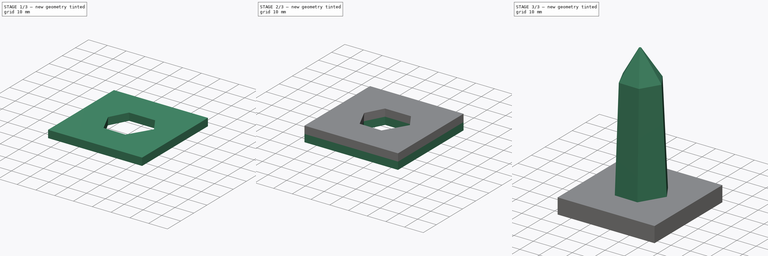
[diagram: build sequence overview — one tinted view per stage of 3, left to right]
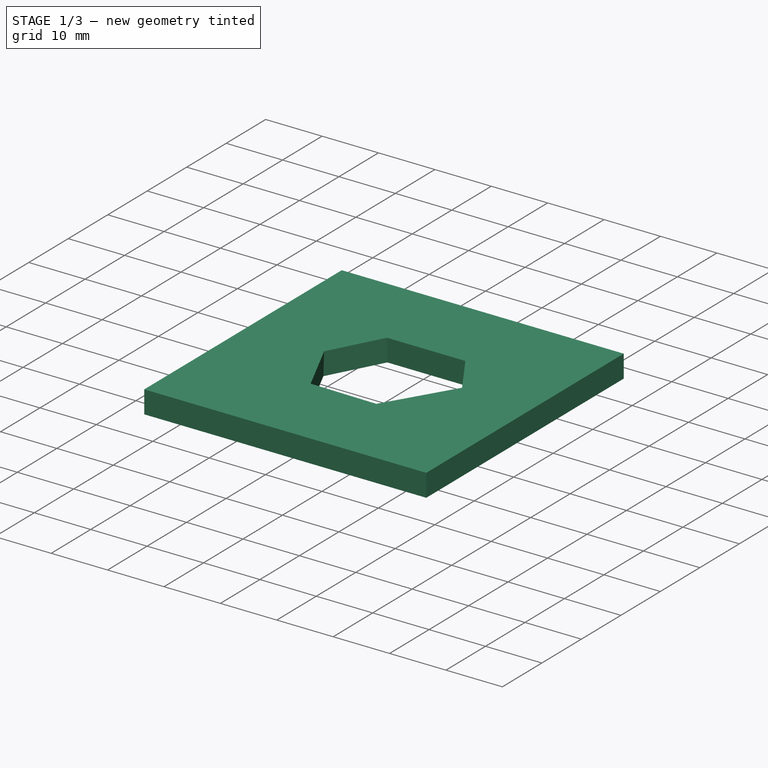
[diagram: stage 1 of 3 — iso view after this stage's code; geometry added in this stage tinted green]
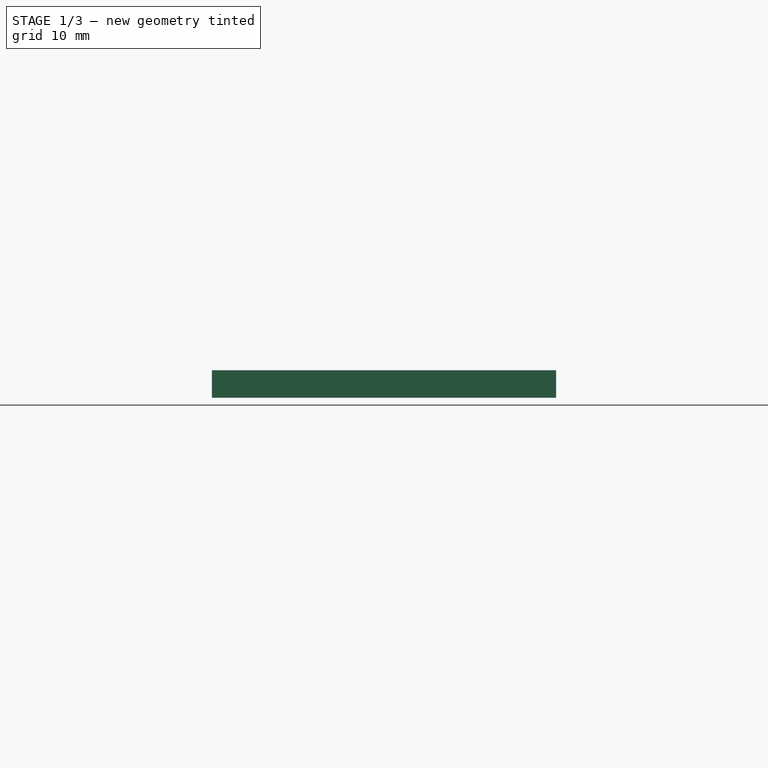
[diagram: stage 1 of 3 — front view after this stage's code; geometry added in this stage tinted green]
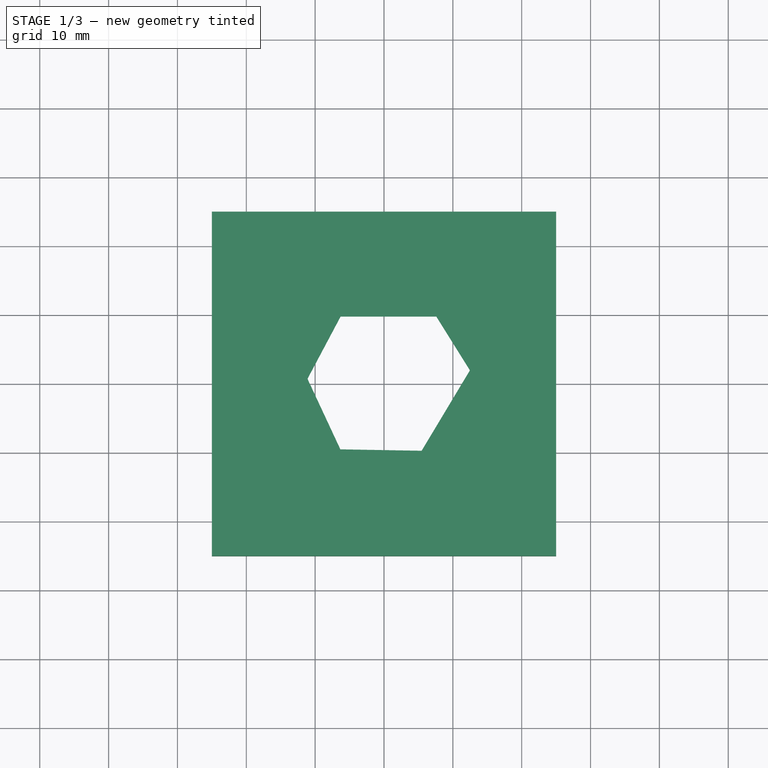
[diagram: stage 1 of 3 — top view after this stage's code; geometry added in this stage tinted green]
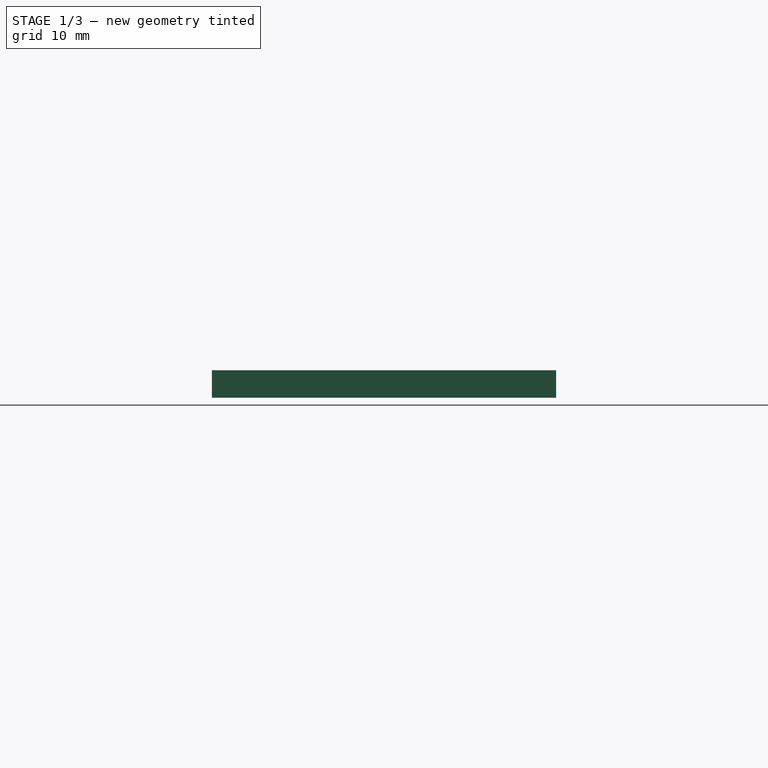
[diagram: stage 1 of 3 — right view after this stage's code; geometry added in this stage tinted green]
FCSTD DOCUMENT  (FreeCAD 0.18R16085 (Git))
Label: crystal
License: All rights reserved
LicenseURL: http://en.wikipedia.org/wiki/All_rights_reserved
objects: Sketcher::SketchObject×11, PartDesign::Body×5, TechDraw::DrawProjGroupItem×4, TechDraw::DrawViewSection×3, PartDesign::Pocket×2, Part::Feature×2, PartDesign::Pad×2, PartDesign::ShapeBinder×2, PartDesign::Boolean×2, TechDraw::DrawSVGTemplate×1, PartDesign::AdditiveLoft×1, PartDesign::FeatureBase×1, TechDraw::DrawProjGroup×1, Image::ImagePlane×1, TechDraw::DrawViewPart×1, TechDraw::DrawPage×1
note: 33 computed .brp shape members not serialized (recipe doc carries the construction recipe); baked Part::Feature solids carry a one-line shape summary decoded from their .brp

FEATURE [TechDraw::DrawSVGTemplate] Template
  EditableTexts = Designed_by_Name=Stefan Krüger; Drawing_number=1; FC-Date=15.03.2019; FC-SC=1:1; FC-SH=1; FC-Title=Crystsal; Subtitle=model and mounting; Weight=-; extra_information_title=URL; extra_information_value=https://github.com/<owner>/magic_crystal
  Height = 210
  Orientation = 1
  Width = 297
FEATURE [Sketcher::SketchObject] Sketch007  label="crystal_outline_at_00.0mm__Sketch"
  sketch-geometry (9):
    g0: LineSegment StartX=-6.33086 StartY=9.97483 StartZ=0 EndX=7.86914 EndY=9.97483 EndZ=0
    g1: LineSegment StartX=7.86914 StartY=9.97483 StartZ=0 EndX=12.8113 EndY=2.06573 EndZ=0
    g2: LineSegment StartX=12.8113 StartY=2.06573 StartZ=0 EndX=5.54635 EndY=-10.0252 EndZ=0
    g3: LineSegment StartX=5.54635 StartY=-10.0252 StartZ=0 EndX=-6.45182 EndY=-9.81574 EndZ=0
    g4: LineSegment StartX=-6.45182 StartY=-9.81574 StartZ=0 EndX=-11.3119 EndY=0.606803 EndZ=0
    g5: LineSegment StartX=-11.3119 StartY=0.606803 StartZ=0 EndX=-6.33086 EndY=9.97483 EndZ=0
    g6: LineSegment [constr] StartX=0.769137 StartY=9.97483 StartZ=0 EndX=0 EndY=0 EndZ=0
    g7: LineSegment [constr] StartX=0 StartY=0 StartZ=0 EndX=-8.88188 EndY=-4.60447 EndZ=0
    g8: LineSegment [constr] StartX=0 StartY=0 StartZ=0 EndX=9.17882 EndY=-3.97972 EndZ=0
  constraints (30):
    c: Coincident(g0,g1)
    c: Coincident(g1,g2)
    c: Coincident(g2,g3)
    c: Coincident(g3,g4)
    c: Coincident(g4,g5)
    c: Coincident(g5,g0)
    c: Distance(g2) = 14.1056
    c: Distance(g3) = 12
    c: Distance(g4) = 11.5
    c: Distance(g5) = 10.61
    c: Distance(g0) = 14.2
    c: Distance(g1) = 9.32624
    c: Horizontal(g0)
    c: DistanceY(g2,g0) = 20
    c: Symmetric(g2,g2,g8)
    c: Symmetric(g4,g4,g7)
    c: Symmetric(g0,g0,g6)
    c: Equal(g6,g7)
    c: Equal(g7,g8)
    c: Coincident(g6,g-1)
    c: Coincident(g7,g8)
    c: Coincident(g7,g-1)
    c: Angle(g5,g0) = 2.05949
    c: Angle(g0,g1) = 2.1293
    c: Angle(g1,g2) = 2.04204
    c: Angle(g4,g5) = 2.21657
    c: Angle(g3,g4) = 2.02458
    c: Angle(g2,g3) = 2.0944
    c: Distance(g4,g1) = 24.1673
    c: Distance(g4,g2) = 19.9309
FEATURE [Sketcher::SketchObject] Sketch009  label="crystal_outline_at_60.0mm__Sketch"
  Placement = pos=(0,0,60) rot=(0,0,1;0rad)
  sketch-geometry (9):
    g0: LineSegment StartX=-6.14803 StartY=8.30968 StartZ=0 EndX=5.85197 EndY=8.30968 EndZ=0
    g1: LineSegment StartX=5.85197 StartY=8.30968 StartZ=0 EndX=10.3164 EndY=1.16505 EndZ=0
    g2: LineSegment StartX=10.3164 StartY=1.16505 StartZ=0 EndX=4.90853 EndY=-7.83521 EndZ=0
    g3: LineSegment StartX=4.90853 StartY=-7.83521 StartZ=0 EndX=-5.58987 EndY=-7.65196 EndZ=0
    g4: LineSegment StartX=-5.58987 StartY=-7.65196 StartZ=0 EndX=-9.81605 EndY=1.41112 EndZ=0
    g5: LineSegment StartX=-9.81605 StartY=1.41112 StartZ=0 EndX=-6.14803 EndY=8.30968 EndZ=0
    g6: LineSegment [constr] StartX=-0.148026 StartY=8.30968 StartZ=0 EndX=0 EndY=0 EndZ=0
    g7: LineSegment [constr] StartX=0 StartY=0 StartZ=0 EndX=-7.70296 EndY=-3.12042 EndZ=0
    g8: LineSegment [constr] StartX=0 StartY=0 StartZ=0 EndX=7.61248 EndY=-3.33508 EndZ=0
  constraints (27):
    c: Coincident(g0,g1)
    c: Coincident(g1,g2)
    c: Coincident(g2,g3)
    c: Coincident(g3,g4)
    c: Coincident(g4,g5)
    c: Coincident(g5,g0)
    c: Distance(g2) = 10.5
    c: Distance(g3) = 10.5
    c: Distance(g4) = 10
    c: Distance(g5) = 7.8131
    c: Distance(g0) = 12
    c: Distance(g1) = 8.42479
    c: Horizontal(g0)
    c: Symmetric(g2,g2,g8)
    c: Symmetric(g4,g4,g7)
    c: Symmetric(g0,g0,g6)
    c: Equal(g6,g7)
    c: Equal(g7,g8)
    c: Coincident(g6,g-1)
    c: Coincident(g7,g8)
    c: Coincident(g7,g-1)
    c: Angle(g5,g0) = 2.05949
    c: Angle(g0,g1) = 2.1293
    c: Angle(g1,g2) = 2.04204
    c: Angle(g4,g5) = 2.21657
    c: Angle(g3,g4) = 2.02458
    c: Angle(g2,g3) = 2.0944
FEATURE [Sketcher::SketchObject] Sketch010  label="crystal_outline_at_75.0mm__Sketch"
  Placement = pos=(0,0,75) rot=(0,0,1;0rad)
  sketch-geometry (9):
    g0: LineSegment StartX=-0.24088 StartY=0.440595 StartZ=0 EndX=0.25912 EndY=0.440595 EndZ=0
    g1: LineSegment StartX=0.25912 StartY=0.440595 StartZ=0 EndX=0.52408 EndY=0.0165712 EndZ=0
    g2: LineSegment StartX=0.52408 StartY=0.0165712 StartZ=0 EndX=0.232142 EndY=-0.469295 EndZ=0
    g3: LineSegment StartX=0.232142 StartY=-0.469295 StartZ=0 EndX=-0.267782 EndY=-0.460569 EndZ=0
    g4: LineSegment StartX=-0.267782 StartY=-0.460569 StartZ=0 EndX=-0.479091 EndY=-0.00741507 EndZ=0
    g5: LineSegment StartX=-0.479091 StartY=-0.00741507 StartZ=0 EndX=-0.24088 EndY=0.440595 EndZ=0
    g6: LineSegment [constr] StartX=0.0091199 StartY=0.440595 StartZ=0 EndX=0 EndY=0 EndZ=0
    g7: LineSegment [constr] StartX=0 StartY=0 StartZ=0 EndX=-0.373437 EndY=-0.233992 EndZ=0
    g8: LineSegment [constr] StartX=0 StartY=0 StartZ=0 EndX=0.378111 EndY=-0.226362 EndZ=0
  constraints (27):
    c: Coincident(g0,g1)
    c: Coincident(g1,g2)
    c: Coincident(g2,g3)
    c: Coincident(g3,g4)
    c: Coincident(g4,g5)
    c: Coincident(g5,g0)
    c: Distance(g2) = 0.566828
    c: Distance(g3) = 0.5
    c: Distance(g4) = 0.5
    c: Distance(g5) = 0.507403
    c: Distance(g0) = 0.5
    c: Distance(g1) = 0.5
    c: Horizontal(g0)
    c: Symmetric(g2,g2,g8)
    c: Symmetric(g4,g4,g7)
    c: Symmetric(g0,g0,g6)
    c: Equal(g6,g7)
    c: Equal(g7,g8)
    c: Coincident(g6,g-1)
    c: Coincident(g7,g8)
    c: Coincident(g7,g-1)
    c: Angle(g5,g0) = 2.05949
    c: Angle(g0,g1) = 2.1293
    c: Angle(g1,g2) = 2.04204
    c: Angle(g4,g5) = 2.21657
    c: Angle(g3,g4) = 2.02458
    c: Angle(g2,g3) = 2.0944
FEATURE [PartDesign::AdditiveLoft] AdditiveLoft002
  Closed = true
  Profile = -> Sketch007
  Ruled = true
  Sections = -> [Sketch009,Sketch010]
FEATURE [PartDesign::Body] Body002002  label="mounting_plate_bottom_4mm_Body"
  Group = -> [Sketch,Pad,Boolean]
  Origin = -> Origin003
  Tip = -> Boolean
FEATURE [Sketcher::SketchObject] Sketch016
  AttachmentOffset = pos=(0,0,4) rot=(0,0,1;0rad)
  MapMode = 5
  Placement = pos=(0,0,4) rot=(0,0,1;0rad)
  Support = -> [XY_Plane004]
  sketch-geometry (4):
    g0: LineSegment StartX=-25 StartY=25 StartZ=0 EndX=25 EndY=25 EndZ=0
    g1: LineSegment StartX=25 StartY=25 StartZ=0 EndX=25 EndY=-25 EndZ=0
    g2: LineSegment StartX=25 StartY=-25 StartZ=0 EndX=-25 EndY=-25 EndZ=0
    g3: LineSegment StartX=-25 StartY=-25 StartZ=0 EndX=-25 EndY=25 EndZ=0
  constraints (11):
    c: Coincident(g0,g1)
    c: Coincident(g1,g2)
    c: Coincident(g2,g3)
    c: Coincident(g3,g0)
    c: Horizontal(g0)
    c: Horizontal(g2)
    c: Vertical(g1)
    c: Vertical(g3)
    c: Symmetric(g2,g0,g-1)
    c: Equal(g0,g1)
    c: DistanceX(g0,g0) = 50
FEATURE [PartDesign::Pad] Pad001
  Length = 4
  Length2 = 100
  Profile = -> Sketch016
  Type = 0
FEATURE [PartDesign::ShapeBinder] ShapeBinder001  label="crystal_ShapeBinder001"
  Support = -> [Body001]
  TraceSupport = false
FEATURE [PartDesign::Boolean] Boolean001
  BaseFeature = -> Pad001
  Group = -> [ShapeBinder001]
  Type = 1
FEATURE [PartDesign::Body] Body002003  label="mounting_plate_top_4mm_Body"
  Group = -> [Sketch016,Pad001,Boolean001]
  Origin = -> Origin004
  Tip = -> Boolean001
FEATURE [Part::Feature] Body001001  label="crystal_Body_SimpleCopy"
  shape: bbox 24.12 x 20 x 75 mm, 14 faces (baked)
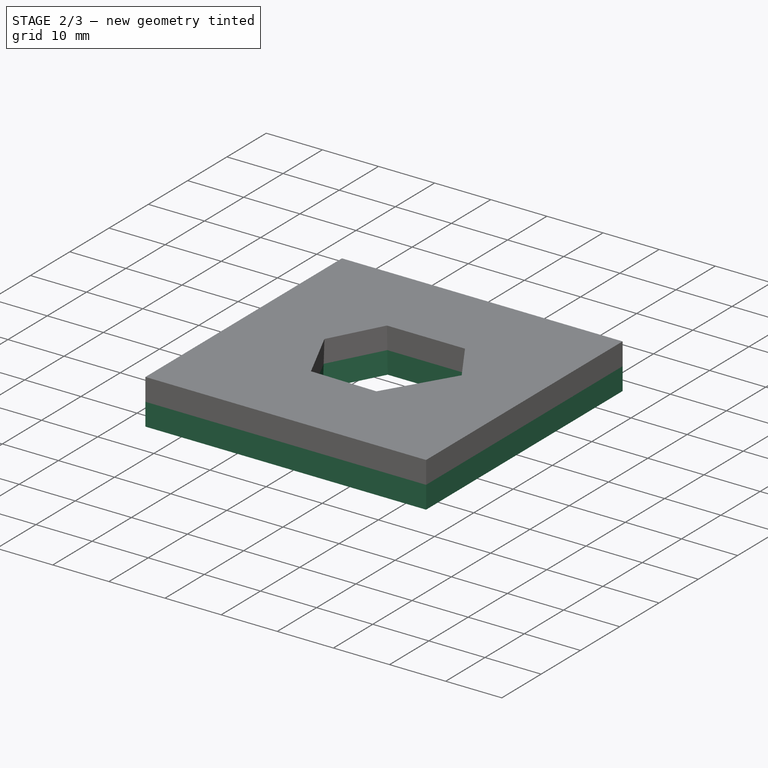
[diagram: stage 2 of 3 — iso view after this stage's code; geometry added in this stage tinted green]
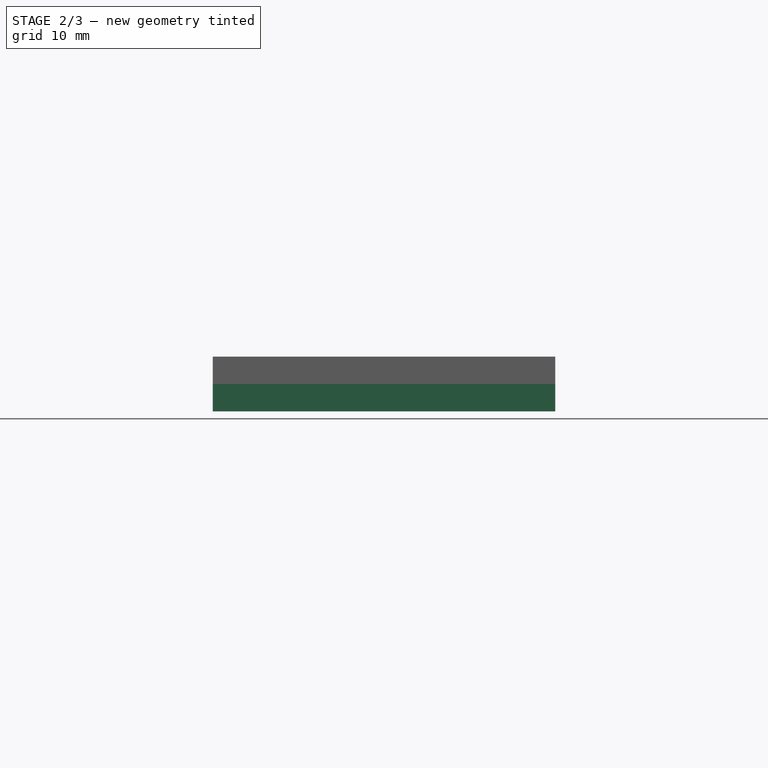
[diagram: stage 2 of 3 — front view after this stage's code; geometry added in this stage tinted green]
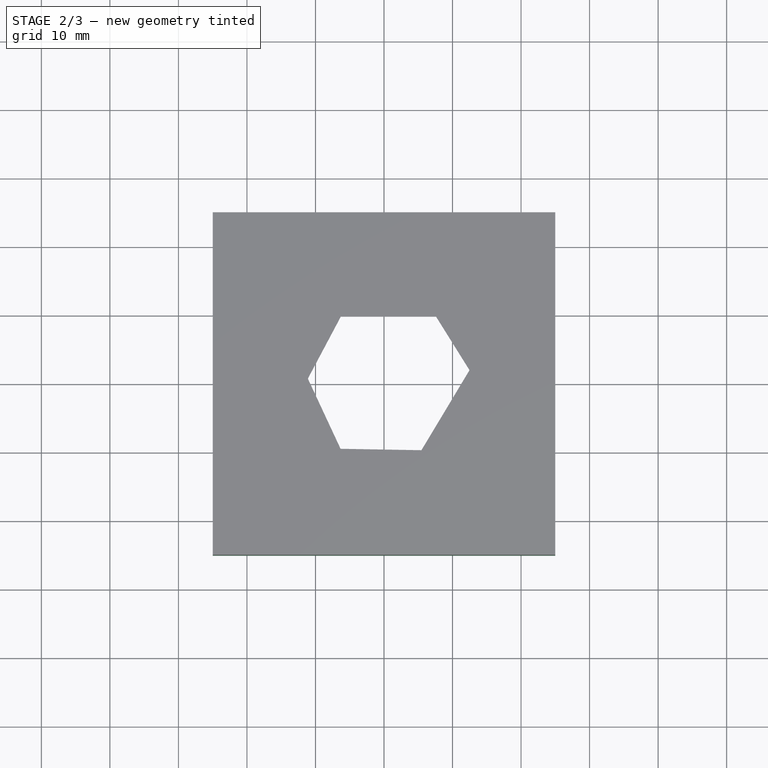
[diagram: stage 2 of 3 — top view after this stage's code; geometry added in this stage tinted green]
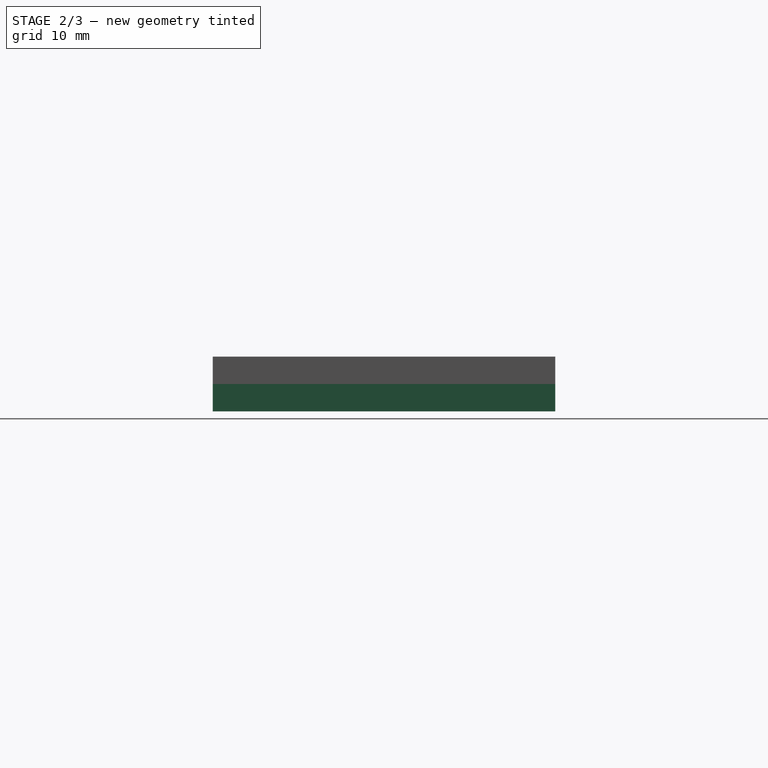
[diagram: stage 2 of 3 — right view after this stage's code; geometry added in this stage tinted green]
FEATURE [PartDesign::Body] Body002  label="crystal_detailed_Body"
  BaseFeature = -> Body001
  Group = -> [Clone,Sketch011,Pocket,Sketch012,Pocket001]
  Origin = -> Origin002
  Tip = -> Pocket001
FEATURE [TechDraw::DrawProjGroupItem] ProjItem  label="Front"
  CoarseView = false
  Direction = (0,0,1)
  Focus = 100
  HardHidden = false
  IsoCount = 0
  IsoHidden = false
  IsoVisible = false
  LockPosition = true
  Perspective = false
  Rotation = 0
  RotationVector = (1,0,0)
  ScaleType = 2
  SeamHidden = false
  SeamVisible = false
  SmoothHidden = false
  SmoothVisible = false
  Source = -> [Body002]
  Type = 0
  X = 0
  Y = 0
FEATURE [TechDraw::DrawProjGroupItem] ProjItem001  label="Bottom"
  CoarseView = false
  Direction = (0,-1,0)
  Focus = 100
  HardHidden = false
  IsoCount = 0
  IsoHidden = false
  IsoVisible = false
  LockPosition = false
  Perspective = false
  Rotation = 0
  RotationVector = (1,0,0)
  ScaleType = 2
  SeamHidden = false
  SeamVisible = false
  SmoothHidden = false
  SmoothVisible = false
  Source = -> [Body002]
  Type = 5
  X = 0
  Y = 65
FEATURE [TechDraw::DrawProjGroupItem] ProjItem004  label="FrontBottomLeft"
  CoarseView = false
  Direction = (-1,-1,1)
  Focus = 100
  HardHidden = false
  IsoCount = 0
  IsoHidden = false
  IsoVisible = false
  LockPosition = false
  Perspective = false
  Rotation = 0
  RotationVector = (1,0,1)
  ScaleType = 2
  SeamHidden = false
  SeamVisible = false
  SmoothHidden = false
  SmoothVisible = false
  Source = -> [Body002]
  Type = 8
  X = 65
  Y = 65
FEATURE [TechDraw::DrawProjGroupItem] ProjItem005  label="Left"
  CoarseView = false
  Direction = (-1,0,1e-16)
  Focus = 100
  HardHidden = false
  IsoCount = 0
  IsoHidden = false
  IsoVisible = false
  LockPosition = false
  Perspective = false
  Rotation = 0
  RotationVector = (1e-16,0,1)
  ScaleType = 2
  SeamHidden = false
  SeamVisible = false
  SmoothHidden = false
  SmoothVisible = false
  Source = -> [Body002]
  Type = 1
  X = 65
  Y = 0
FEATURE [TechDraw::DrawProjGroup] ProjGroup
  Anchor = -> ProjItem
  AutoDistribute = true
  LockPosition = false
  ProjectionType = 0
  Rotation = 0
  ScaleType = 0
  Source = -> [Body002]
  Views = -> [ProjItem,ProjItem001,ProjItem004,ProjItem005]
  X = 180.061
  Y = 90.129
  spacingX = -10
  spacingY = -10
FEATURE [Image::ImagePlane] ImagePlane  label="crystal_outline_at_11.0mm__ImagePlane"
  Placement = pos=(-2,-8,11) rot=(0,0,1;1.5708rad)
  XSize = 52.7
  YSize = 52.7
FEATURE [Sketcher::SketchObject] Sketch001  label="crystal_outline_at_11.0mm__Sketch"
  Placement = pos=(0,0,11) rot=(0,0,1;0rad)
  sketch-geometry (11):
    g0: LineSegment StartX=-6.50475 StartY=9.63331 StartZ=0 EndX=7.49525 EndY=9.63331 EndZ=0
    g1: LineSegment StartX=7.49525 StartY=9.63331 StartZ=0 EndX=12.2728 EndY=1.42202 EndZ=0
    g2: LineSegment StartX=12.2728 StartY=1.42202 StartZ=0 EndX=5.02382 EndY=-9.96669 EndZ=0
    g3: LineSegment StartX=5.02382 StartY=-9.96669 StartZ=0 EndX=-6.47618 EndY=-9.96669 EndZ=0
    g4: LineSegment StartX=-6.47618 StartY=-9.96669 StartZ=0 EndX=-10.2559 EndY=0.363534 EndZ=0
    g5: LineSegment StartX=-10.2559 StartY=0.363534 StartZ=0 EndX=-6.50475 EndY=9.63331 EndZ=0
    g6: LineSegment [constr] StartX=-6.50475 StartY=9.63331 StartZ=0 EndX=10.5783 EndY=-1.24012 EndZ=0
    g7: LineSegment [constr] StartX=-7.93752 StartY=-5.97276 StartZ=0 EndX=12.2728 EndY=1.42202 EndZ=0
    g8: LineSegment [constr] StartX=0.49525 StartY=9.63331 StartZ=0 EndX=0 EndY=0 EndZ=0
    g9: LineSegment [constr] StartX=0 StartY=0 StartZ=0 EndX=8.6483 EndY=-4.27234 EndZ=0
    g10: LineSegment [constr] StartX=0 StartY=0 StartZ=0 EndX=-8.36605 EndY=-4.80158 EndZ=0
  constraints (31):
    c: Coincident(g0,g1)
    c: Coincident(g1,g2)
    c: Coincident(g2,g3)
    c: Coincident(g3,g4)
    c: Coincident(g4,g5)
    c: Coincident(g5,g0)
    c: Distance(g2) = 13.5
    c: Distance(g3) = 11.5
    c: Distance(g4) = 11
    c: Distance(g5) = 10
    c: Distance(g0) = 14
    c: Distance(g1) = 9.5
    c: Horizontal(g3)
    c: Horizontal(g0)
    c: DistanceY(g2,g0) = 19.6
    c: PointOnObject(g6,g2)
    c: Perpendicular(g2,g6)
    c: Coincident(g6,g0)
    c: Distance(g6) = 20.25
    c: Coincident(g7,g1)
    c: PointOnObject(g7,g4)
    c: Perpendicular(g4,g7)
    c: Distance(g7) = 21.5207
    c: Coincident(g9,g8)
    c: Coincident(g10,g8)
    c: Symmetric(g4,g4,g10)
    c: Symmetric(g0,g0,g8)
    c: Symmetric(g2,g2,g9)
    c: Equal(g8,g10)
    c: Equal(g10,g9)
    c: Coincident(g8,g-1)
FEATURE [Part::Feature] Body002001  label="crystal_detailed_Body_SimpleCopy"
  shape: bbox 24.12 x 20 x 75 mm, 16 faces (baked)
FEATURE [Sketcher::SketchObject] Sketch013  label="crystal_outline_at_4mm__Sketch"
  Placement = pos=(0,0,4) rot=(0,0,1;0rad)
  sketch-geometry (9):
    g0: LineSegment StartX=-6.33086 StartY=9.97483 StartZ=0 EndX=7.86914 EndY=9.97483 EndZ=0
    g1: LineSegment StartX=7.86914 StartY=9.97483 StartZ=0 EndX=12.8113 EndY=2.06573 EndZ=0
    g2: LineSegment StartX=12.8113 StartY=2.06573 StartZ=0 EndX=5.54635 EndY=-10.0252 EndZ=0
    g3: LineSegment StartX=5.54635 StartY=-10.0252 StartZ=0 EndX=-6.45182 EndY=-9.81574 EndZ=0
    g4: LineSegment StartX=-6.45182 StartY=-9.81574 StartZ=0 EndX=-11.3119 EndY=0.606803 EndZ=0
    g5: LineSegment StartX=-11.3119 StartY=0.606803 StartZ=0 EndX=-6.33086 EndY=9.97483 EndZ=0
    g6: LineSegment [constr] StartX=0.769137 StartY=9.97483 StartZ=0 EndX=0 EndY=0 EndZ=0
    g7: LineSegment [constr] StartX=0 StartY=0 StartZ=0 EndX=-8.88188 EndY=-4.60447 EndZ=0
    g8: LineSegment [constr] StartX=0 StartY=0 StartZ=0 EndX=9.17882 EndY=-3.97972 EndZ=0
  constraints (30):
    c: Coincident(g0,g1)
    c: Coincident(g1,g2)
    c: Coincident(g2,g3)
    c: Coincident(g3,g4)
    c: Coincident(g4,g5)
    c: Coincident(g5,g0)
    c: Distance(g2) = 14.1056
    c: Distance(g3) = 12
    c: Distance(g4) = 11.5
    c: Distance(g5) = 10.61
    c: Distance(g0) = 14.2
    c: Distance(g1) = 9.32624
    c: Horizontal(g0)
    c: DistanceY(g2,g0) = 20
    c: Symmetric(g2,g2,g8)
    c: Symmetric(g4,g4,g7)
    c: Symmetric(g0,g0,g6)
    c: Equal(g6,g7)
    c: Equal(g7,g8)
    c: Coincident(g6,g-1)
    c: Coincident(g7,g8)
    c: Coincident(g7,g-1)
    c: Angle(g5,g0) = 2.05949
    c: Angle(g0,g1) = 2.1293
    c: Angle(g1,g2) = 2.04204
    c: Angle(g4,g5) = 2.21657
    c: Angle(g3,g4) = 2.02458
    c: Angle(g2,g3) = 2.0944
    c: Distance(g4,g1) = 24.1673
    c: Distance(g4,g2) = 19.9309
FEATURE [Sketcher::SketchObject] Sketch014  label="crystal_outline_at_8mm__Sketch"
  Placement = pos=(0,0,8) rot=(0,0,1;0rad)
  sketch-geometry (9):
    g0: LineSegment StartX=-6.33086 StartY=9.97483 StartZ=0 EndX=7.86914 EndY=9.97483 EndZ=0
    g1: LineSegment StartX=7.86914 StartY=9.97483 StartZ=0 EndX=12.8113 EndY=2.06573 EndZ=0
    g2: LineSegment StartX=12.8113 StartY=2.06573 StartZ=0 EndX=5.54635 EndY=-10.0252 EndZ=0
    g3: LineSegment StartX=5.54635 StartY=-10.0252 StartZ=0 EndX=-6.45182 EndY=-9.81574 EndZ=0
    g4: LineSegment StartX=-6.45182 StartY=-9.81574 StartZ=0 EndX=-11.3119 EndY=0.606803 EndZ=0
    g5: LineSegment StartX=-11.3119 StartY=0.606803 StartZ=0 EndX=-6.33086 EndY=9.97483 EndZ=0
    g6: LineSegment [constr] StartX=0.769137 StartY=9.97483 StartZ=0 EndX=0 EndY=0 EndZ=0
    g7: LineSegment [constr] StartX=0 StartY=0 StartZ=0 EndX=-8.88188 EndY=-4.60447 EndZ=0
    g8: LineSegment [constr] StartX=0 StartY=0 StartZ=0 EndX=9.17882 EndY=-3.97972 EndZ=0
  constraints (30):
    c: Coincident(g0,g1)
    c: Coincident(g1,g2)
    c: Coincident(g2,g3)
    c: Coincident(g3,g4)
    c: Coincident(g4,g5)
    c: Coincident(g5,g0)
    c: Distance(g2) = 14.1056
    c: Distance(g3) = 12
    c: Distance(g4) = 11.5
    c: Distance(g5) = 10.61
    c: Distance(g0) = 14.2
    c: Distance(g1) = 9.32624
    c: Horizontal(g0)
    c: DistanceY(g2,g0) = 20
    c: Symmetric(g2,g2,g8)
    c: Symmetric(g4,g4,g7)
    c: Symmetric(g0,g0,g6)
    c: Equal(g6,g7)
    c: Equal(g7,g8)
    c: Coincident(g6,g-1)
    c: Coincident(g7,g8)
    c: Coincident(g7,g-1)
    c: Angle(g5,g0) = 2.05949
    c: Angle(g0,g1) = 2.1293
    c: Angle(g1,g2) = 2.04204
    c: Angle(g4,g5) = 2.21657
    c: Angle(g3,g4) = 2.02458
    c: Angle(g2,g3) = 2.0944
    c: Distance(g4,g1) = 24.1673
    c: Distance(g4,g2) = 19.9309
FEATURE [Sketcher::SketchObject] Sketch015  label="crystal_outline_at_11mm__Sketch"
  Placement = pos=(0,0,11) rot=(0,0,1;0rad)
  sketch-geometry (9):
    g0: LineSegment StartX=-6.33086 StartY=9.97483 StartZ=0 EndX=7.86914 EndY=9.97483 EndZ=0
    g1: LineSegment StartX=7.86914 StartY=9.97483 StartZ=0 EndX=12.8113 EndY=2.06573 EndZ=0
    g2: LineSegment StartX=12.8113 StartY=2.06573 StartZ=0 EndX=5.54635 EndY=-10.0252 EndZ=0
    g3: LineSegment StartX=5.54635 StartY=-10.0252 StartZ=0 EndX=-6.45182 EndY=-9.81574 EndZ=0
    g4: LineSegment StartX=-6.45182 StartY=-9.81574 StartZ=0 EndX=-11.3119 EndY=0.606803 EndZ=0
    g5: LineSegment StartX=-11.3119 StartY=0.606803 StartZ=0 EndX=-6.33086 EndY=9.97483 EndZ=0
    g6: LineSegment [constr] StartX=0.769137 StartY=9.97483 StartZ=0 EndX=0 EndY=0 EndZ=0
    g7: LineSegment [constr] StartX=0 StartY=0 StartZ=0 EndX=-8.88188 EndY=-4.60447 EndZ=0
    g8: LineSegment [constr] StartX=0 StartY=0 StartZ=0 EndX=9.17882 EndY=-3.97972 EndZ=0
  constraints (30):
    c: Coincident(g0,g1)
    c: Coincident(g1,g2)
    c: Coincident(g2,g3)
    c: Coincident(g3,g4)
    c: Coincident(g4,g5)
    c: Coincident(g5,g0)
    c: Distance(g2) = 14.1056
    c: Distance(g3) = 12
    c: Distance(g4) = 11.5
    c: Distance(g5) = 10.61
    c: Distance(g0) = 14.2
    c: Distance(g1) = 9.32624
    c: Horizontal(g0)
    c: DistanceY(g2,g0) = 20
    c: Symmetric(g2,g2,g8)
    c: Symmetric(g4,g4,g7)
    c: Symmetric(g0,g0,g6)
    c: Equal(g6,g7)
    c: Equal(g7,g8)
    c: Coincident(g6,g-1)
    c: Coincident(g7,g8)
    c: Coincident(g7,g-1)
    c: Angle(g5,g0) = 2.05949
    c: Angle(g0,g1) = 2.1293
    c: Angle(g1,g2) = 2.04204
    c: Angle(g4,g5) = 2.21657
    c: Angle(g3,g4) = 2.02458
    c: Angle(g2,g3) = 2.0944
    c: Distance(g4,g1) = 24.1673
    c: Distance(g4,g2) = 19.9309
FEATURE [PartDesign::Body] Body  label="mounting_cut_helper_Body"
  Group = -> [Sketch013,Sketch014,Sketch015]
  Origin = -> Origin
FEATURE [TechDraw::DrawViewPart] View001  label="Crystal_Side_Big_View"
  CoarseView = false
  Direction = (-0.017,-0.999,0.036)
  Focus = 100
  HardHidden = false
  IsoCount = 0
  IsoHidden = false
  IsoVisible = false
  LockPosition = true
  Perspective = false
  Rotation = 0
  Scale = 2
  ScaleType = 0
  SeamHidden = false
  SeamVisible = false
  SmoothHidden = false
  SmoothVisible = false
  Source = -> [Body002]
  X = 50
  Y = 120
FEATURE [TechDraw::DrawViewSection] Section  label="Section A - A"
  BaseView = -> View001
  CoarseView = false
  Direction = (0,0,1)
  Focus = 100
  FuseBeforeCut = true
  HardHidden = false
  HatchScale = 1
  IsoCount = 0
  IsoHidden = false
  IsoVisible = false
  LockPosition = false
  NameGeomPattern = Diamond
  Perspective = false
  Rotation = 0
  ScaleType = 2
  SeamHidden = false
  SeamVisible = false
  SectionDirection = 3
  SectionNormal = (0,0,1)
  SectionOrigin = (0,0,60)
  SectionSymbol = A
  SmoothHidden = false
  SmoothVisible = false
  Source = -> [Body002]
  X = 114.423
  Y = 176.586
FEATURE [TechDraw::DrawViewSection] Section001  label="Section B - B"
  BaseView = -> View001
  CoarseView = false
  Direction = (0,0,1)
  Focus = 100
  FuseBeforeCut = true
  HardHidden = false
  HatchScale = 1
  IsoCount = 0
  IsoHidden = false
  IsoVisible = false
  LockPosition = false
  NameGeomPattern = Diamond
  Perspective = false
  Rotation = 0
  ScaleType = 2
  SeamHidden = false
  SeamVisible = false
  SectionDirection = 3
  SectionNormal = (0,0,1)
  SectionOrigin = (0,0,11)
  SectionSymbol = B
  SmoothHidden = false
  SmoothVisible = false
  Source = -> [Body002]
  X = 118.916
  Y = 88.283
FEATURE [TechDraw::DrawViewSection] Section002  label="Section C - C"
  BaseView = -> View001
  CoarseView = false
  Direction = (0,0,1)
  Focus = 100
  FuseBeforeCut = true
  HardHidden = false
  HatchScale = 1
  IsoCount = 0
  IsoHidden = false
  IsoVisible = false
  LockPosition = false
  NameGeomPattern = Diamond
  Perspective = false
  Rotation = 0
  ScaleType = 2
  SeamHidden = false
  SeamVisible = false
  SectionDirection = 3
  SectionNormal = (0,0,1)
  SectionOrigin = (0,0,4)
  SectionSymbol = C
  SmoothHidden = false
  SmoothVisible = false
  Source = -> [Body002]
  X = 118.685
  Y = 54.7378
FEATURE [TechDraw::DrawPage] Page
  KeepUpdated = true
  ProjectionType = 0
  Template = -> Template
  Views = -> [ProjGroup,Section,Section001,Section002,View001]
FEATURE [Sketcher::SketchObject] Sketch
  MapMode = 5
  Support = -> [XY_Plane003]
  sketch-geometry (4):
    g0: LineSegment StartX=-25 StartY=25 StartZ=0 EndX=25 EndY=25 EndZ=0
    g1: LineSegment StartX=25 StartY=25 StartZ=0 EndX=25 EndY=-25 EndZ=0
    g2: LineSegment StartX=25 StartY=-25 StartZ=0 EndX=-25 EndY=-25 EndZ=0
    g3: LineSegment StartX=-25 StartY=-25 StartZ=0 EndX=-25 EndY=25 EndZ=0
  constraints (11):
    c: Coincident(g0,g1)
    c: Coincident(g1,g2)
    c: Coincident(g2,g3)
    c: Coincident(g3,g0)
    c: Horizontal(g0)
    c: Horizontal(g2)
    c: Vertical(g1)
    c: Vertical(g3)
    c: Symmetric(g2,g0,g-1)
    c: Equal(g0,g1)
    c: DistanceX(g0,g0) = 50
FEATURE [PartDesign::Pad] Pad
  Length = 4
  Length2 = 100
  Profile = -> Sketch
  Type = 0
FEATURE [PartDesign::ShapeBinder] ShapeBinder  label="crystal_ShapeBinder"
  Support = -> [Body001]
  TraceSupport = false
FEATURE [PartDesign::Boolean] Boolean
  BaseFeature = -> Pad
  Group = -> [ShapeBinder]
  Type = 1
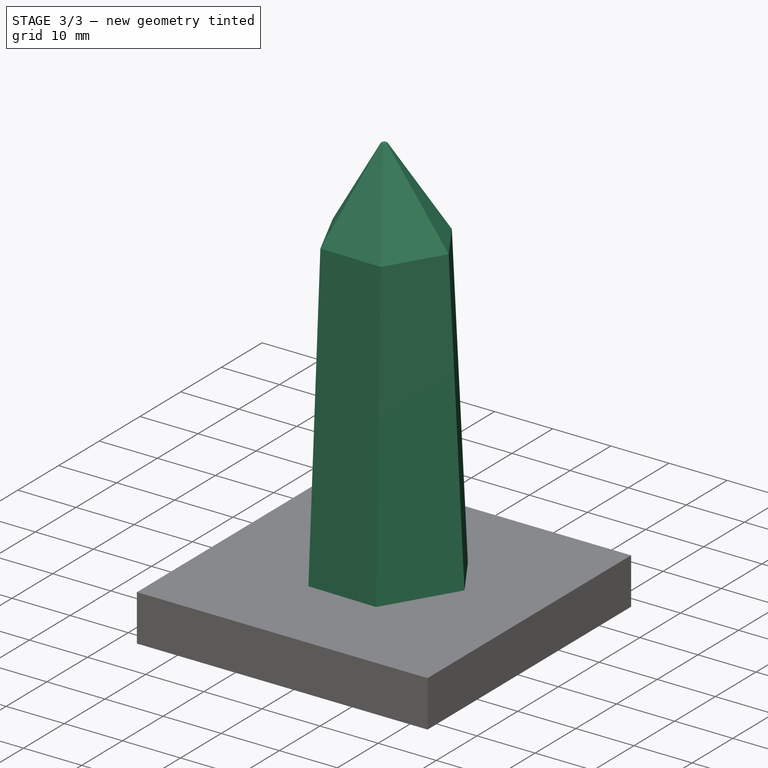
[diagram: stage 3 of 3 — iso view after this stage's code; geometry added in this stage tinted green]
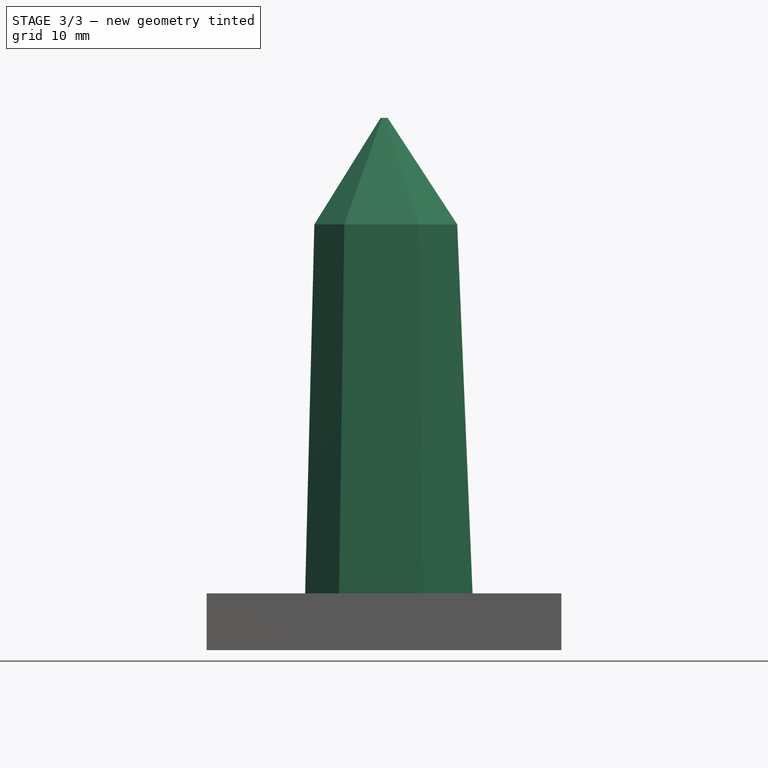
[diagram: stage 3 of 3 — front view after this stage's code; geometry added in this stage tinted green]
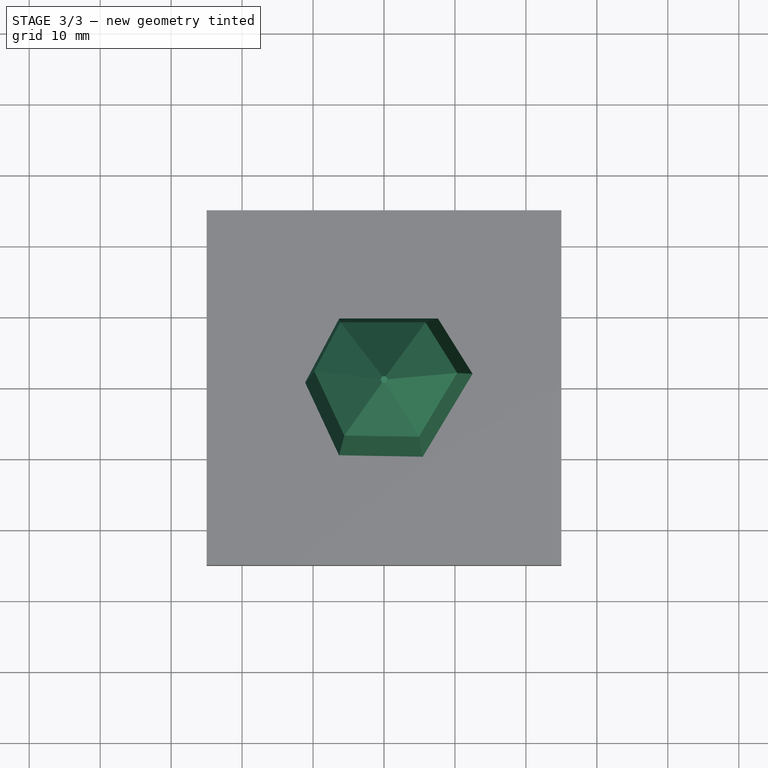
[diagram: stage 3 of 3 — top view after this stage's code; geometry added in this stage tinted green]
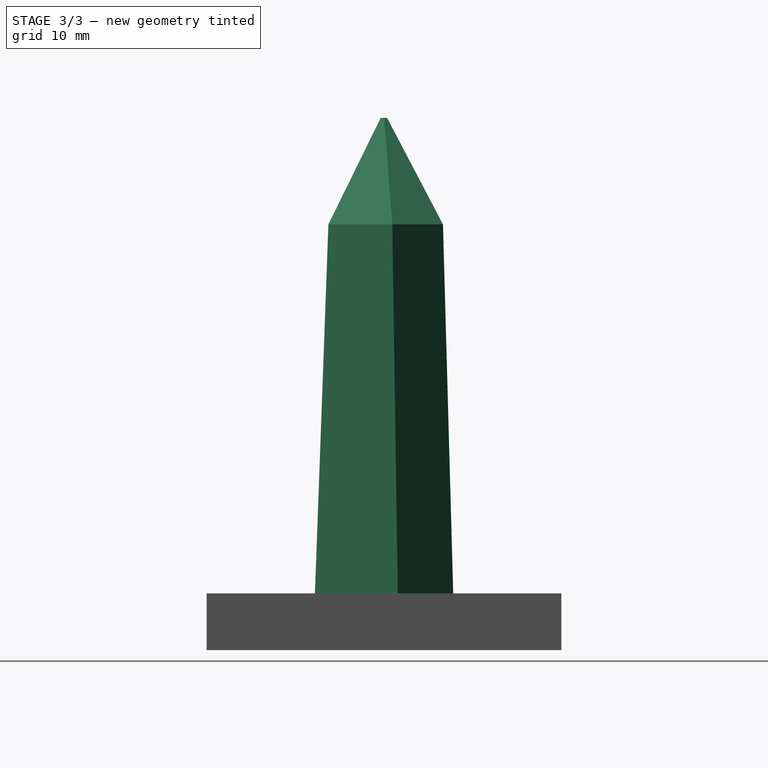
[diagram: stage 3 of 3 — right view after this stage's code; geometry added in this stage tinted green]
FEATURE [PartDesign::Body] Body001  label="crystal_Body"
  Group = -> [Sketch007,Sketch009,Sketch010,AdditiveLoft002]
  Origin = -> Origin001
  Tip = -> AdditiveLoft002
FEATURE [PartDesign::FeatureBase] Clone
  BaseFeature = -> Body001
FEATURE [Sketcher::SketchObject] Sketch011
  MapMode = 5
  Placement = pos=(0,0,0) rot=(0.57735,0.57735,0.57735;2.0944rad)
  Support = -> [YZ_Plane002]
  sketch-geometry (3):
    g0: LineSegment StartX=17 StartY=16.3205 StartZ=0 EndX=7 EndY=-1 EndZ=0
    g1: LineSegment StartX=7 StartY=-1 StartZ=0 EndX=17 EndY=-1 EndZ=0
    g2: LineSegment StartX=17 StartY=-1 StartZ=0 EndX=17 EndY=16.3205 EndZ=0
  constraints (9):
    c: Coincident(g0,g1)
    c: Horizontal(g1)
    c: Coincident(g1,g2)
    c: Coincident(g2,g0)
    c: Vertical(g2)
    c: Angle(g1,g0) = 1.0472
    c: DistanceX(g0) = 7
    c: DistanceY(g0) = -1
    c: DistanceX(g1,g1) = 10
FEATURE [PartDesign::Pocket] Pocket
  BaseFeature = -> Clone
  Length = 5
  Length2 = 100
  Midplane = true
  Profile = -> Sketch011
  Type = 1
FEATURE [Sketcher::SketchObject] Sketch012
  AttachmentOffset = pos=(0,0,0) rot=(0.862856,0.357407,0.357407;1.71777rad)
  MapMode = 5
  Placement = pos=(0,0,0) rot=(0.862856,0.357407,0.357407;1.71777rad)
  Support = -> [XY_Plane002]
  sketch-geometry (3):
    g0: LineSegment StartX=5 StartY=-1 StartZ=0 EndX=15 EndY=-1 EndZ=0
    g1: LineSegment StartX=15 StartY=-1 StartZ=0 EndX=15 EndY=9 EndZ=0
    g2: LineSegment StartX=15 StartY=9 StartZ=0 EndX=5 EndY=-1 EndZ=0
  constraints (9):
    c: Horizontal(g0)
    c: Coincident(g0,g1)
    c: Vertical(g1)
    c: Coincident(g1,g2)
    c: Coincident(g2,g0)
    c: Angle(g0,g2) = 0.785398
    c: DistanceX(g0) = 5
    c: DistanceY(g0) = -1
    c: DistanceX(g0,g0) = 10
FEATURE [PartDesign::Pocket] Pocket001
  BaseFeature = -> Pocket
  Length = 5
  Length2 = 100
  Midplane = true
  Profile = -> Sketch012
  Type = 1
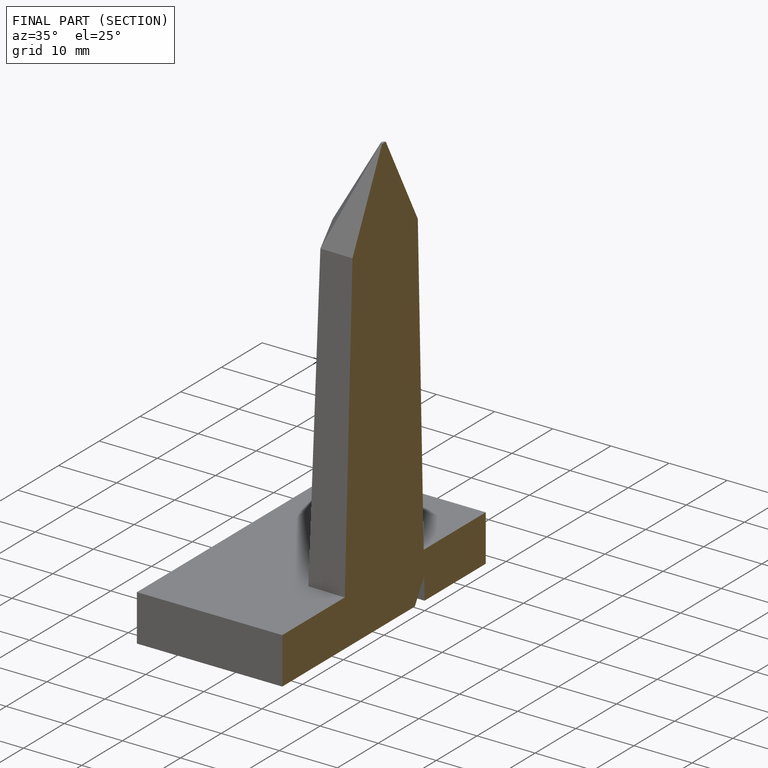
[diagram: finished part — half-section view (interior)]
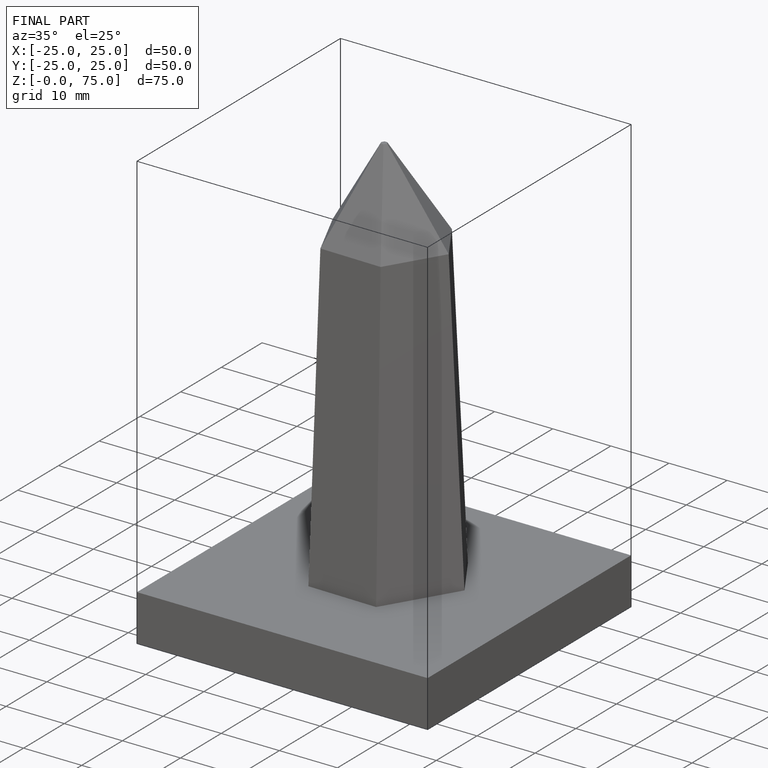
[diagram: finished part — iso view with bounding-box wireframe]
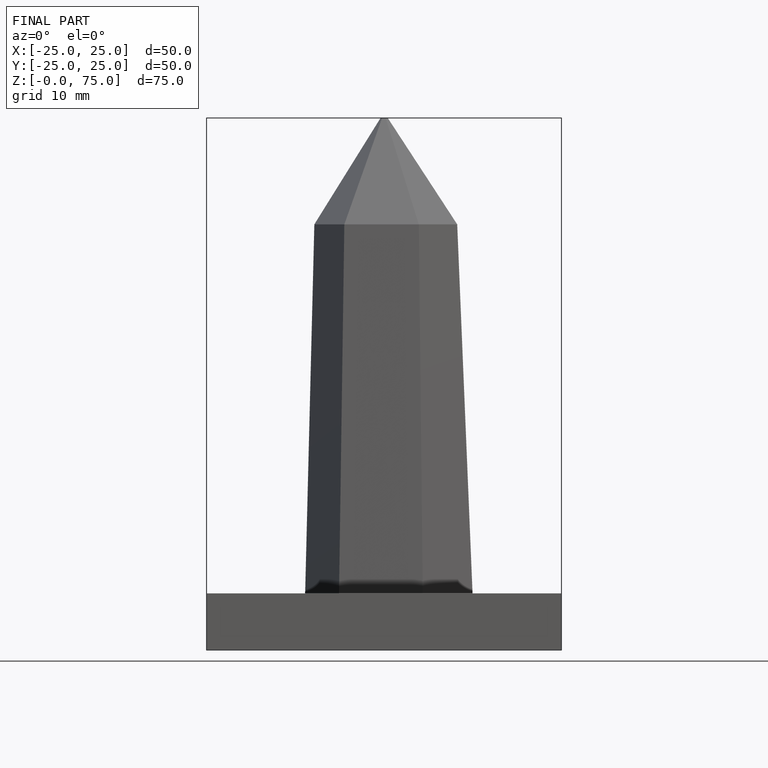
[diagram: finished part — front view with bounding-box wireframe]
